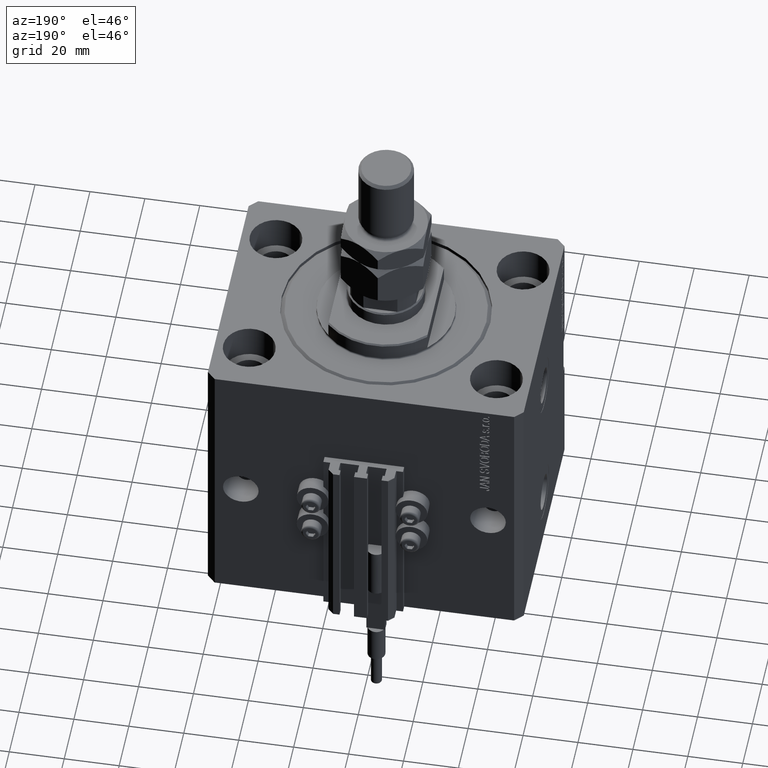
[diagram: clean part render]
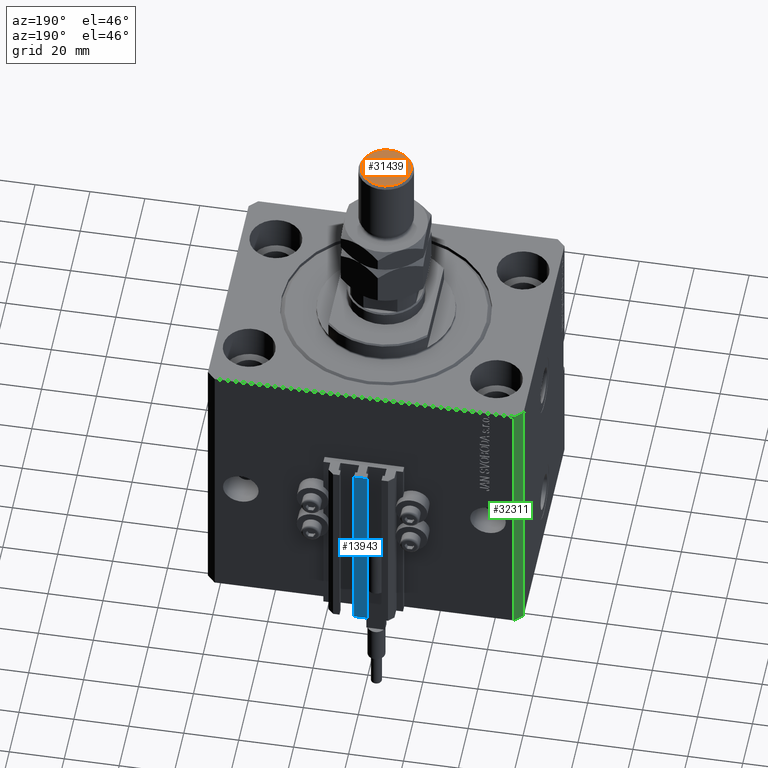
[diagram: same view with three faces highlighted in distinct colors, each labeled with its STEP entity id]
A machine part, auxiliary view with three faces highlighted in distinct colors.
Their STEP definitions:

[orange] entity #31439 — the highlighted planar face has unit normal (0, 0, 1).
#2377 = DIRECTION ( 'NONE',  ( 0.000000000000000000, 0.000000000000000000, 1.000000000000000000 ) ) ;
#7766 = DIRECTION ( 'NONE',  ( 1.000000000000000000, 0.000000000000000000, -0.000000000000000000 ) ) ;
#10583 = AXIS2_PLACEMENT_3D ( 'NONE', #36021, #16390, #31885 ) ;
#11379 = CARTESIAN_POINT ( 'NONE',  ( 0.000000000000000000, 0.000000000000000000, 53.00000000000000711 ) ) ;
#14323 = AXIS2_PLACEMENT_3D ( 'NONE', #21998, #2377, #18132 ) ;
#15799 = EDGE_CURVE ( 'NONE', #44626, #32474, #16799, .T. ) ;
#16390 = DIRECTION ( 'NONE',  ( 0.000000000000000000, 0.000000000000000000, 1.000000000000000000 ) ) ;
#16799 = CIRCLE ( 'NONE', #14323, 9.000000000000047962 ) ;
#18132 = DIRECTION ( 'NONE',  ( 1.000000000000000000, 0.000000000000000000, 0.000000000000000000 ) ) ;
#19397 = FACE_OUTER_BOUND ( 'NONE', #25078, .T. ) ;
#21998 = CARTESIAN_POINT ( 'NONE',  ( 0.000000000000000000, 0.000000000000000000, 53.00000000000000711 ) ) ;
#22787 = ORIENTED_EDGE ( 'NONE', *, *, #39430, .T. ) ;
#23218 = CARTESIAN_POINT ( 'NONE',  ( 9.000000000000047962, 1.163414459189988443E-15, 53.00000000000000711 ) ) ;
#25078 = EDGE_LOOP ( 'NONE', ( #44763, #22787 ) ) ;
#26164 = AXIS2_PLACEMENT_3D ( 'NONE', #11379, #34374, #7766 ) ;
#31439 = ADVANCED_FACE ( 'NONE', ( #19397 ), #35143, .T. ) ;
#31885 = DIRECTION ( 'NONE',  ( 1.000000000000000000, 0.000000000000000000, 0.000000000000000000 ) ) ;
#32474 = VERTEX_POINT ( 'NONE', #23218 ) ;
#34374 = DIRECTION ( 'NONE',  ( 0.000000000000000000, 0.000000000000000000, 1.000000000000000000 ) ) ;
#35143 = PLANE ( 'NONE',  #26164 ) ;
#36021 = CARTESIAN_POINT ( 'NONE',  ( 0.000000000000000000, 0.000000000000000000, 53.00000000000000711 ) ) ;
#39430 = EDGE_CURVE ( 'NONE', #32474, #44626, #41125, .T. ) ;
#41125 = CIRCLE ( 'NONE', #10583, 9.000000000000047962 ) ;
#44626 = VERTEX_POINT ( 'NONE', #50247 ) ;
#44763 = ORIENTED_EDGE ( 'NONE', *, *, #15799, .T. ) ;
#50247 = CARTESIAN_POINT ( 'NONE',  ( -9.000000000000047962, 0.000000000000000000, 53.00000000000000711 ) ) ;

[blue] entity #13943 — the highlighted planar face has unit normal (0, -1, 0).
#626 = CARTESIAN_POINT ( 'NONE',  ( -2.350000000000003642, 53.00000000000000000, -105.0000000000000000 ) ) ;
#870 = VECTOR ( 'NONE', #3101, 1000.000000000000000 ) ;
#2705 = AXIS2_PLACEMENT_3D ( 'NONE', #13319, #37336, #5316 ) ;
#2881 = CARTESIAN_POINT ( 'NONE',  ( -2.350000000000003642, 53.00000000000000000, -33.00000000000000000 ) ) ;
#3101 = DIRECTION ( 'NONE',  ( 1.000000000000000000, 0.000000000000000000, 0.000000000000000000 ) ) ;
#3938 = ORIENTED_EDGE ( 'NONE', *, *, #22379, .F. ) ;
#5316 = DIRECTION ( 'NONE',  ( 0.000000000000000000, -0.000000000000000000, -1.000000000000000000 ) ) ;
#5820 = FACE_OUTER_BOUND ( 'NONE', #7417, .T. ) ;
#7417 = EDGE_LOOP ( 'NONE', ( #34624, #3938, #36462, #40132 ) ) ;
#7924 = VECTOR ( 'NONE', #16199, 1000.000000000000000 ) ;
#10082 = LINE ( 'NONE', #26866, #870 ) ;
#13319 = CARTESIAN_POINT ( 'NONE',  ( -2.350000000000003642, 53.00000000000000000, -105.0000000000000000 ) ) ;
#13943 = ADVANCED_FACE ( 'NONE', ( #5820 ), #21577, .F. ) ;
#15016 = VECTOR ( 'NONE', #35018, 1000.000000000000000 ) ;
#15849 = VERTEX_POINT ( 'NONE', #2881 ) ;
#16199 = DIRECTION ( 'NONE',  ( 1.000000000000000000, 0.000000000000000000, 0.000000000000000000 ) ) ;
#16405 = CARTESIAN_POINT ( 'NONE',  ( 2.349999999999999645, 53.00000000000000000, -105.0000000000000000 ) ) ;
#19718 = VERTEX_POINT ( 'NONE', #35005 ) ;
#21577 = PLANE ( 'NONE',  #2705 ) ;
#22161 = EDGE_CURVE ( 'NONE', #45829, #46281, #28087, .T. ) ;
#22379 = EDGE_CURVE ( 'NONE', #46281, #19718, #22609, .T. ) ;
#22609 = LINE ( 'NONE', #50971, #36873 ) ;
#26767 = CARTESIAN_POINT ( 'NONE',  ( -2.350000000000003642, 53.00000000000000000, -105.0000000000000000 ) ) ;
#26866 = CARTESIAN_POINT ( 'NONE',  ( -2.350000000000003642, 53.00000000000000000, -33.00000000000000000 ) ) ;
#28087 = LINE ( 'NONE', #43813, #7924 ) ;
#34624 = ORIENTED_EDGE ( 'NONE', *, *, #42894, .T. ) ;
#35005 = CARTESIAN_POINT ( 'NONE',  ( 2.349999999999999645, 53.00000000000000000, -33.00000000000000000 ) ) ;
#35018 = DIRECTION ( 'NONE',  ( 0.000000000000000000, 0.000000000000000000, 1.000000000000000000 ) ) ;
#36462 = ORIENTED_EDGE ( 'NONE', *, *, #22161, .F. ) ;
#36873 = VECTOR ( 'NONE', #42733, 1000.000000000000000 ) ;
#37336 = DIRECTION ( 'NONE',  ( 0.000000000000000000, -1.000000000000000000, 0.000000000000000000 ) ) ;
#38380 = LINE ( 'NONE', #26767, #15016 ) ;
#40132 = ORIENTED_EDGE ( 'NONE', *, *, #47048, .T. ) ;
#42733 = DIRECTION ( 'NONE',  ( 0.000000000000000000, 0.000000000000000000, 1.000000000000000000 ) ) ;
#42894 = EDGE_CURVE ( 'NONE', #15849, #19718, #10082, .T. ) ;
#43813 = CARTESIAN_POINT ( 'NONE',  ( -2.350000000000003642, 53.00000000000000000, -105.0000000000000000 ) ) ;
#45829 = VERTEX_POINT ( 'NONE', #626 ) ;
#46281 = VERTEX_POINT ( 'NONE', #16405 ) ;
#47048 = EDGE_CURVE ( 'NONE', #45829, #15849, #38380, .T. ) ;
#50971 = CARTESIAN_POINT ( 'NONE',  ( 2.349999999999999645, 53.00000000000000000, -105.0000000000000000 ) ) ;

[green] entity #32311 — the highlighted planar face has unit normal (-0.7071, 0.7071, 0).
#1218 = CARTESIAN_POINT ( 'NONE',  ( -57.49999999999998579, 42.00000000000000711, -105.0000000000000000 ) ) ;
#3469 = VECTOR ( 'NONE', #16453, 1000.000000000000000 ) ;
#3928 = LINE ( 'NONE', #23305, #10554 ) ;
#4509 = ORIENTED_EDGE ( 'NONE', *, *, #19592, .T. ) ;
#4834 = DIRECTION ( 'NONE',  ( 0.000000000000000000, 0.000000000000000000, 1.000000000000000000 ) ) ;
#5155 = CARTESIAN_POINT ( 'NONE',  ( -54.49999999999999289, 45.00000000000000000, -105.0000000000000000 ) ) ;
#6430 = DIRECTION ( 'NONE',  ( -0.7071067811865483499, -0.7071067811865465735, 0.000000000000000000 ) ) ;
#10554 = VECTOR ( 'NONE', #47541, 1000.000000000000000 ) ;
#10606 = LINE ( 'NONE', #27142, #12923 ) ;
#12923 = VECTOR ( 'NONE', #39013, 1000.000000000000000 ) ;
#16453 = DIRECTION ( 'NONE',  ( -0.7071067811865483499, -0.7071067811865466846, 0.000000000000000000 ) ) ;
#16807 = CARTESIAN_POINT ( 'NONE',  ( -57.49999999999998579, 42.00000000000000711, -105.0000000000000000 ) ) ;
#17568 = DIRECTION ( 'NONE',  ( -0.7071067811865466846, 0.7071067811865484609, 0.000000000000000000 ) ) ;
#19592 = EDGE_CURVE ( 'NONE', #31563, #51040, #20340, .T. ) ;
#19760 = CARTESIAN_POINT ( 'NONE',  ( -57.49999999999998579, 42.00000000000000711, 0.000000000000000000 ) ) ;
#20340 = LINE ( 'NONE', #1218, #22710 ) ;
#22710 = VECTOR ( 'NONE', #4834, 1000.000000000000000 ) ;
#23068 = ORIENTED_EDGE ( 'NONE', *, *, #30389, .F. ) ;
#23305 = CARTESIAN_POINT ( 'NONE',  ( -54.49999999999999289, 45.00000000000000000, -105.0000000000000000 ) ) ;
#25371 = AXIS2_PLACEMENT_3D ( 'NONE', #37691, #17568, #6430 ) ;
#27142 = CARTESIAN_POINT ( 'NONE',  ( -54.49999999999999289, 45.00000000000000000, -105.0000000000000000 ) ) ;
#28949 = PLANE ( 'NONE',  #25371 ) ;
#30389 = EDGE_CURVE ( 'NONE', #40021, #48763, #10606, .T. ) ;
#30410 = ORIENTED_EDGE ( 'NONE', *, *, #33577, .T. ) ;
#31179 = LINE ( 'NONE', #47419, #3469 ) ;
#31563 = VERTEX_POINT ( 'NONE', #16807 ) ;
#32311 = ADVANCED_FACE ( 'NONE', ( #45420 ), #28949, .T. ) ;
#32901 = EDGE_LOOP ( 'NONE', ( #35569, #23068, #30410, #4509 ) ) ;
#33577 = EDGE_CURVE ( 'NONE', #40021, #31563, #3928, .T. ) ;
#35569 = ORIENTED_EDGE ( 'NONE', *, *, #50703, .F. ) ;
#37691 = CARTESIAN_POINT ( 'NONE',  ( -54.49999999999999289, 45.00000000000000000, -105.0000000000000000 ) ) ;
#38768 = CARTESIAN_POINT ( 'NONE',  ( -54.49999999999999289, 45.00000000000000000, 0.000000000000000000 ) ) ;
#39013 = DIRECTION ( 'NONE',  ( 0.000000000000000000, 0.000000000000000000, 1.000000000000000000 ) ) ;
#40021 = VERTEX_POINT ( 'NONE', #5155 ) ;
#45420 = FACE_OUTER_BOUND ( 'NONE', #32901, .T. ) ;
#47419 = CARTESIAN_POINT ( 'NONE',  ( -54.49999999999999289, 45.00000000000000000, 0.000000000000000000 ) ) ;
#47541 = DIRECTION ( 'NONE',  ( -0.7071067811865483499, -0.7071067811865466846, 0.000000000000000000 ) ) ;
#48763 = VERTEX_POINT ( 'NONE', #38768 ) ;
#50703 = EDGE_CURVE ( 'NONE', #48763, #51040, #31179, .T. ) ;
#51040 = VERTEX_POINT ( 'NONE', #19760 ) ;